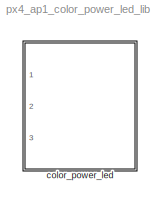
MODEL px4_ap1_color_power_led_lib
KIND library
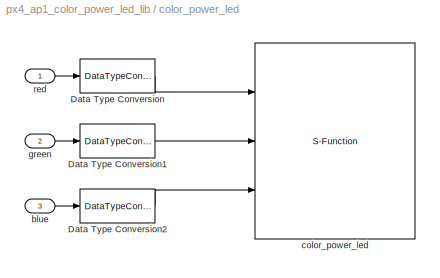
BLOCK [SubSystem] color_power_led
  Ports = [3]
  RequestExecContextInheritance = off
  SID = 1
BLOCK [DataTypeConversion] color_power_led/Data Type Conversion
  RndMeth = Floor
  SID = 5
  SaturateOnIntegerOverflow = off
BLOCK [DataTypeConversion] color_power_led/Data Type Conversion1
  RndMeth = Floor
  SID = 6
  SaturateOnIntegerOverflow = off
BLOCK [DataTypeConversion] color_power_led/Data Type Conversion2
  RndMeth = Floor
  SID = 7
  SaturateOnIntegerOverflow = off
BLOCK [Inport] color_power_led/blue
  IconDisplay = Port number
  Port = 3
  SID = 4
BLOCK [S-Function] color_power_led/color_power_led
  EnableBusSupport = off
  FunctionName = px4_ap1_color_power_led
  Ports = [3]
  SFcnIsStateOwnerBlock = off
  SFunctionDeploymentMode = off
  SID = 8
BLOCK [Inport] color_power_led/green
  IconDisplay = Port number
  Port = 2
  SID = 3
BLOCK [Inport] color_power_led/red
  IconDisplay = Port number
  SID = 2
LINE color_power_led/Data Type Conversion1:1 -> color_power_led/color_power_led:2
LINE color_power_led/Data Type Conversion2:1 -> color_power_led/color_power_led:3
LINE color_power_led/Data Type Conversion:1 -> color_power_led/color_power_led:1
LINE color_power_led/blue:1 -> color_power_led/Data Type Conversion2:1
LINE color_power_led/green:1 -> color_power_led/Data Type Conversion1:1
LINE color_power_led/red:1 -> color_power_led/Data Type Conversion:1
